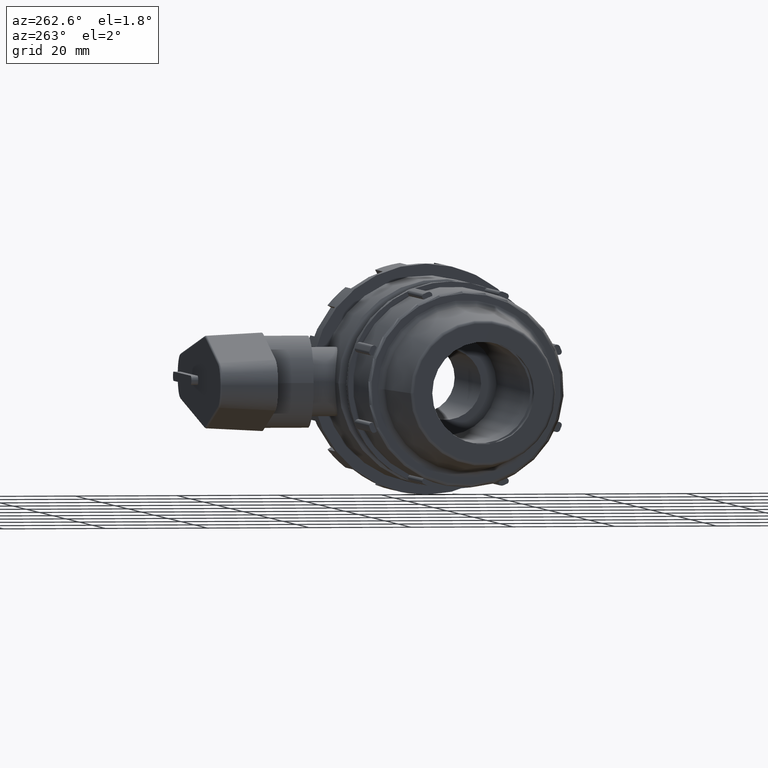
[diagram: clean part render]
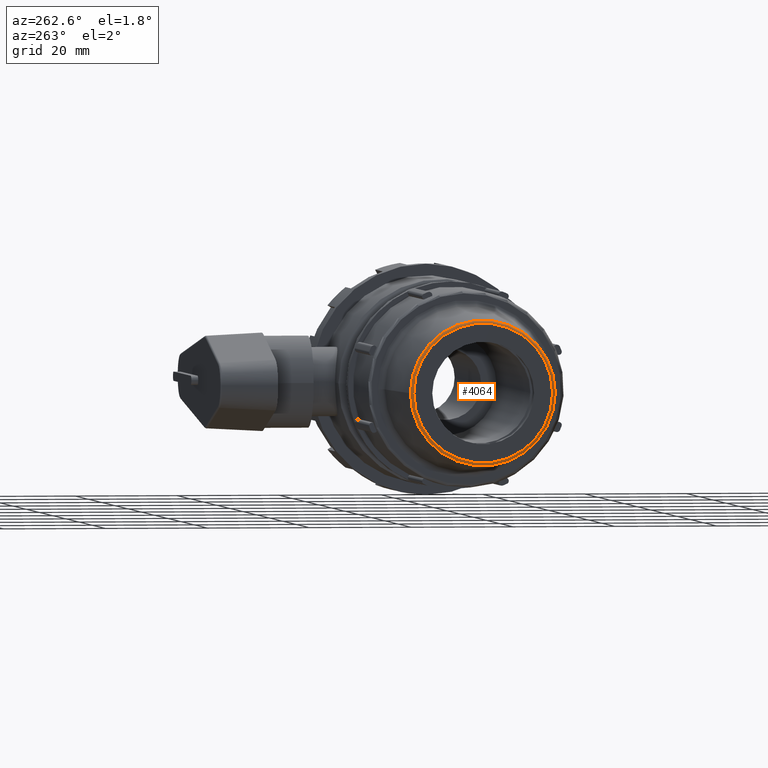
[diagram: same view with one face highlighted and labeled with its STEP entity id]
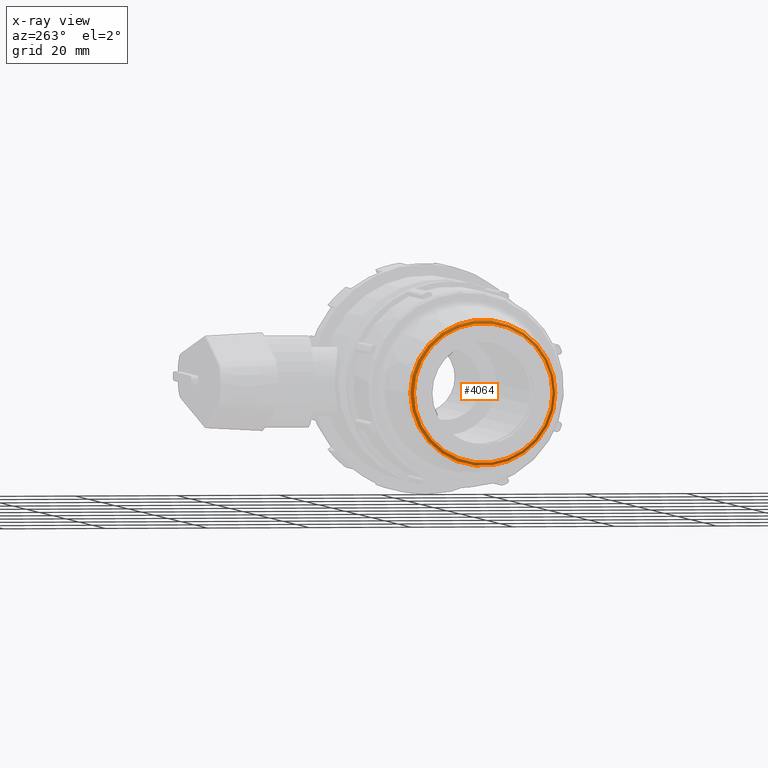
[diagram: x-ray of the same camera — body ghosted, the highlighted face saturated]
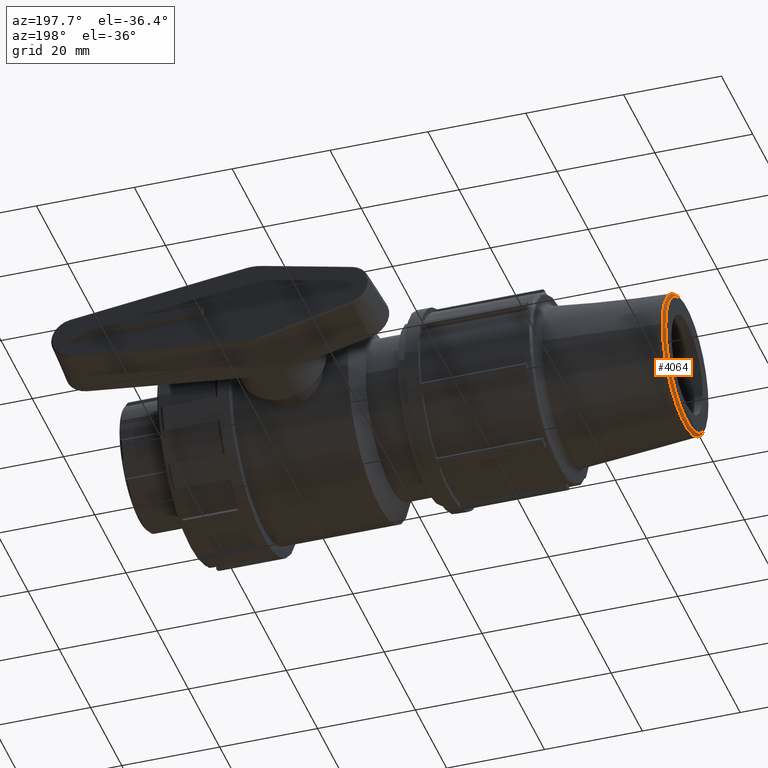
[diagram: same view with one face highlighted and labeled with its STEP entity id]
A machine part, auxiliary view. The second image highlights one B-rep face of the part: STEP entity #4064.
The next image is the same camera in x-ray: the body ghosted, the highlighted face saturated — about 0% of this face is hidden behind the body in this view.
A second angle (auxiliary view) of the same face is appended — the face is thin or edge-on in the first view.
In plain terms, the highlighted toroidal blend (fillet) surface has major radius 13.6205 mm and minor (blend) radius 0.6 mm.
Its self-contained STEP definition (entity closure, byte-faithful):
#42=TOROIDAL_SURFACE('',#4372,13.6205015193933,0.6);
#76=FACE_BOUND('',#663,.T.);
#412=FACE_OUTER_BOUND('',#662,.T.);
#662=EDGE_LOOP('',(#3055));
#663=EDGE_LOOP('',(#3056));
#1432=CIRCLE('',#4373,14.2186404085854);
#1433=CIRCLE('',#4374,13.6205015193933);
#1754=VERTEX_POINT('',#7107);
#1755=VERTEX_POINT('',#7109);
#2238=EDGE_CURVE('',#1754,#1754,#1432,.T.);
#2239=EDGE_CURVE('',#1755,#1755,#1433,.T.);
#3055=ORIENTED_EDGE('',*,*,#2238,.T.);
#3056=ORIENTED_EDGE('',*,*,#2239,.T.);
#4064=ADVANCED_FACE('',(#412,#76),#42,.T.);
#4372=AXIS2_PLACEMENT_3D('',#7106,#5081,#5082);
#4373=AXIS2_PLACEMENT_3D('',#7108,#5083,#5084);
#4374=AXIS2_PLACEMENT_3D('',#7110,#5085,#5086);
#5081=DIRECTION('center_axis',(-1.,-1.09423447351567E-31,0.));
#5082=DIRECTION('ref_axis',(0.,0.,1.));
#5083=DIRECTION('center_axis',(-1.,0.,0.));
#5084=DIRECTION('ref_axis',(0.,-1.,-3.06161699786838E-17));
#5085=DIRECTION('center_axis',(1.,1.09423447351567E-31,0.));
#5086=DIRECTION('ref_axis',(1.09423447351567E-31,-1.,-1.83697019872103E-16));
#7106=CARTESIAN_POINT('Origin',(-74.0666666666667,-1.21897720349646E-29,
0.));
#7107=CARTESIAN_POINT('',(-74.1138881579187,14.2186404085854,8.70640623230064E-16));
#7108=CARTESIAN_POINT('Origin',(-74.1138881579187,0.,2.17660155807516E-15));
#7109=CARTESIAN_POINT('',(-74.6666666666667,13.6205015193933,4.17007589712666E-15));
#7110=CARTESIAN_POINT('Origin',(-74.6666666666667,-1.22554261033755E-29,
0.));